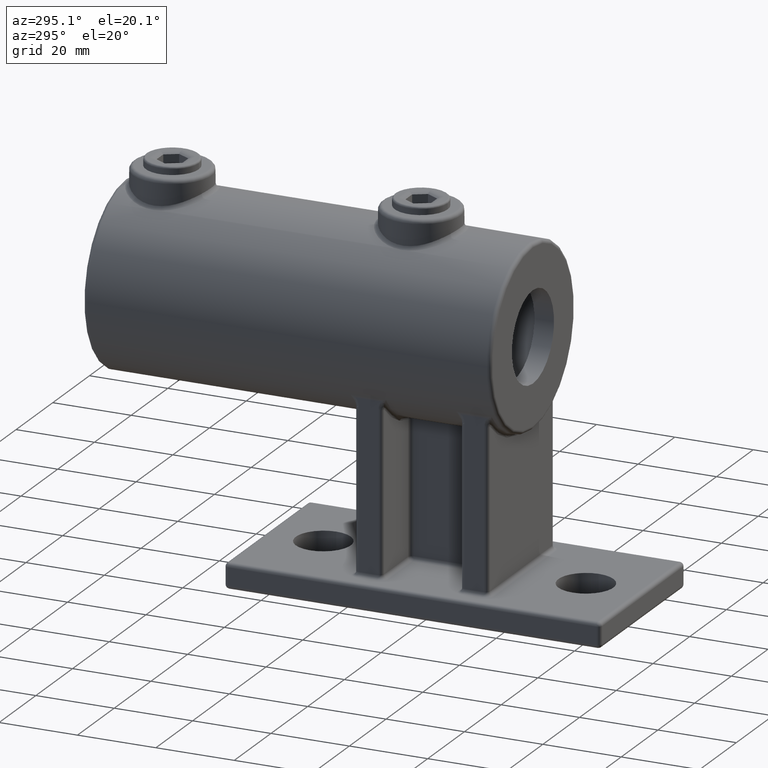
[diagram: clean part render]
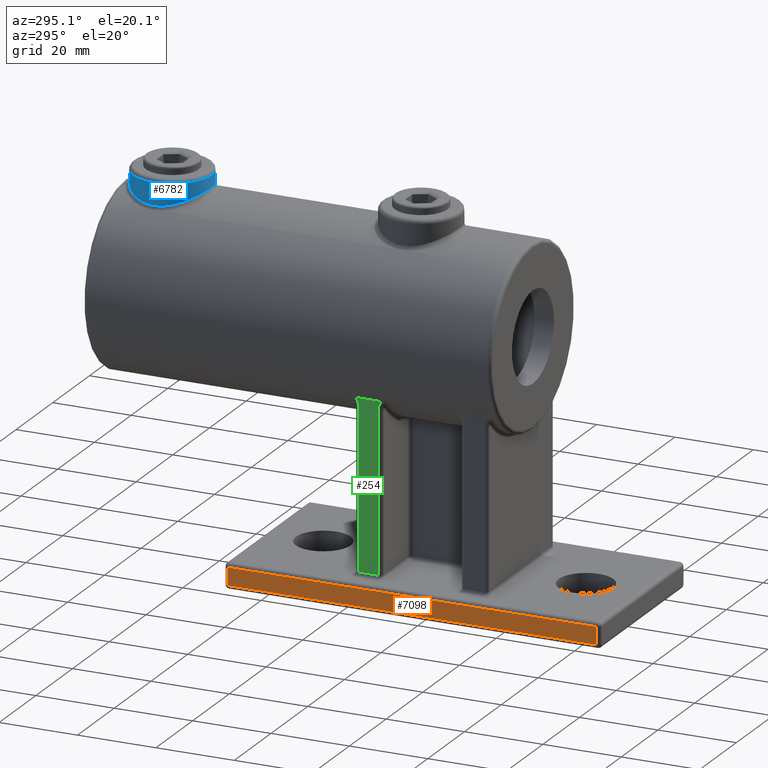
[diagram: same view with three faces highlighted in distinct colors, each labeled with its STEP entity id]
A machine part, auxiliary view with three faces highlighted in distinct colors.
Their STEP definitions:

[orange] entity #7098 — the highlighted planar face has unit normal (1, 0, 0).
#986 = LINE ( 'NONE', #12799, #8273 ) ;
#1278 = ORIENTED_EDGE ( 'NONE', *, *, #13055, .T. ) ;
#1443 = DIRECTION ( 'NONE',  ( -1.445602896647339410E-16, 1.000000000000000000, 0.000000000000000000 ) ) ;
#1877 = CARTESIAN_POINT ( 'NONE',  ( -23.00000000000000355, 46.99999999999999289, 1.000000000000000000 ) ) ;
#2106 = ORIENTED_EDGE ( 'NONE', *, *, #15134, .T. ) ;
#2736 = DIRECTION ( 'NONE',  ( 1.000000000000000000, 1.445602896647339410E-16, -0.000000000000000000 ) ) ;
#2969 = VERTEX_POINT ( 'NONE', #11957 ) ;
#3871 = LINE ( 'NONE', #5772, #5864 ) ;
#4028 = AXIS2_PLACEMENT_3D ( 'NONE', #8915, #2736, #1443 ) ;
#4227 = DIRECTION ( 'NONE',  ( 0.000000000000000000, 0.000000000000000000, -1.000000000000000000 ) ) ;
#4427 = DIRECTION ( 'NONE',  ( 0.000000000000000000, -0.000000000000000000, 1.000000000000000000 ) ) ;
#4622 = VECTOR ( 'NONE', #9259, 1000.000000000000000 ) ;
#5536 = CARTESIAN_POINT ( 'NONE',  ( -22.99999999999998934, -47.00000000000000711, 1.000000000000000000 ) ) ;
#5772 = CARTESIAN_POINT ( 'NONE',  ( -22.99999999999998934, -47.00000000000000711, 6.500000000000000000 ) ) ;
#5864 = VECTOR ( 'NONE', #4427, 1000.000000000000000 ) ;
#6314 = VERTEX_POINT ( 'NONE', #1877 ) ;
#6880 = CARTESIAN_POINT ( 'NONE',  ( -23.00000000000000355, 47.99999999999999289, 1.000000000000000000 ) ) ;
#7000 = FACE_OUTER_BOUND ( 'NONE', #8853, .T. ) ;
#7098 = ADVANCED_FACE ( 'NONE', ( #7000 ), #8805, .F. ) ;
#7347 = EDGE_CURVE ( 'NONE', #11467, #2969, #7976, .T. ) ;
#7750 = CARTESIAN_POINT ( 'NONE',  ( -22.99999999999998934, -47.00000000000000711, 5.500000000000000000 ) ) ;
#7976 = LINE ( 'NONE', #13995, #15683 ) ;
#8273 = VECTOR ( 'NONE', #4227, 1000.000000000000000 ) ;
#8805 = PLANE ( 'NONE',  #4028 ) ;
#8853 = EDGE_LOOP ( 'NONE', ( #10611, #1278, #13629, #2106 ) ) ;
#8915 = CARTESIAN_POINT ( 'NONE',  ( -23.00000000000000355, 47.99999999999999289, 6.500000000000000000 ) ) ;
#9085 = LINE ( 'NONE', #6880, #4622 ) ;
#9259 = DIRECTION ( 'NONE',  ( 1.445602896647339410E-16, -1.000000000000000000, 0.000000000000000000 ) ) ;
#10611 = ORIENTED_EDGE ( 'NONE', *, *, #13868, .T. ) ;
#11467 = VERTEX_POINT ( 'NONE', #7750 ) ;
#11957 = CARTESIAN_POINT ( 'NONE',  ( -23.00000000000000355, 46.99999999999999289, 5.500000000000000000 ) ) ;
#12636 = VERTEX_POINT ( 'NONE', #5536 ) ;
#12799 = CARTESIAN_POINT ( 'NONE',  ( -23.00000000000000355, 46.99999999999999289, 6.500000000000000000 ) ) ;
#12816 = DIRECTION ( 'NONE',  ( -1.445602896647339410E-16, 1.000000000000000000, -0.000000000000000000 ) ) ;
#13055 = EDGE_CURVE ( 'NONE', #12636, #11467, #3871, .T. ) ;
#13629 = ORIENTED_EDGE ( 'NONE', *, *, #7347, .T. ) ;
#13868 = EDGE_CURVE ( 'NONE', #6314, #12636, #9085, .T. ) ;
#13995 = CARTESIAN_POINT ( 'NONE',  ( -23.00000000000000355, 47.99999999999999289, 5.500000000000000000 ) ) ;
#15134 = EDGE_CURVE ( 'NONE', #2969, #6314, #986, .T. ) ;
#15683 = VECTOR ( 'NONE', #12816, 1000.000000000000000 ) ;

[blue] entity #6782 — the highlighted cylindrical surface (bore or boss wall) has radius 10 mm, axis along (-0, -0, -1).
#76 = CARTESIAN_POINT ( 'NONE',  ( 0.000000000000000000, 72.00000000000000000, 93.00000000000000000 ) ) ;
#209 = VERTEX_POINT ( 'NONE', #4884 ) ;
#252 = DIRECTION ( 'NONE',  ( -1.000000000000000000, 0.000000000000000000, 0.000000000000000000 ) ) ;
#295 = DIRECTION ( 'NONE',  ( -0.000000000000000000, -0.000000000000000000, -1.000000000000000000 ) ) ;
#541 = CARTESIAN_POINT ( 'NONE',  ( 9.915889433159575717, 73.33640590795802439, 86.37822785739116682 ) ) ;
#596 = CARTESIAN_POINT ( 'NONE',  ( 0.6531738527059035571, 82.00070254683572557, 89.00035420053647783 ) ) ;
#643 = CARTESIAN_POINT ( 'NONE',  ( -4.175800018884931575, 81.09231397784238027, 88.55875620949858273 ) ) ;
#689 = CARTESIAN_POINT ( 'NONE',  ( -8.960109046784248577, 76.45226150743465610, 86.88358683566858076 ) ) ;
#751 = CARTESIAN_POINT ( 'NONE',  ( -6.846601791825821515, 64.70433218251025664, 87.78924086525198334 ) ) ;
#992 = CARTESIAN_POINT ( 'NONE',  ( 0.000000000000000000, 72.00000000000000000, 92.00000000000000000 ) ) ;
#1007 = CARTESIAN_POINT ( 'NONE',  ( 5.042422044882036936, 63.34031320766225548, 88.35820389461791535 ) ) ;
#1769 = CARTESIAN_POINT ( 'NONE',  ( -8.119490202423980563, 66.15372751148267128, 87.27724424875242448 ) ) ;
#1809 = CARTESIAN_POINT ( 'NONE',  ( -3.563494718649443893, 62.65073710781493332, 88.68013385416084304 ) ) ;
#1859 = CARTESIAN_POINT ( 'NONE',  ( 7.518105003423262822, 78.60168847271708614, 87.53145933793906863 ) ) ;
#1890 = EDGE_CURVE ( 'NONE', #10736, #10736, #11275, .T. ) ;
#1923 = CARTESIAN_POINT ( 'NONE',  ( -9.652407192341552644, 69.36555037122201384, 86.52393539707151149 ) ) ;
#1969 = CARTESIAN_POINT ( 'NONE',  ( -5.040268303391500559, 63.33867719700420196, 88.35889053769514589 ) ) ;
#2015 = CARTESIAN_POINT ( 'NONE',  ( 7.526155328160895053, 65.38418056716281512, 87.53309641896554183 ) ) ;
#2075 = CARTESIAN_POINT ( 'NONE',  ( 10.00000000000000355, 71.32631111152537073, 86.33072900770152103 ) ) ;
#2128 = CARTESIAN_POINT ( 'NONE',  ( 9.458650511049581766, 68.73762900592080882, 86.62776556968482566 ) ) ;
#2218 = CARTESIAN_POINT ( 'NONE',  ( 2.623774558904533816, 62.34468334411612744, 88.82841204224044418 ) ) ;
#2994 = CARTESIAN_POINT ( 'NONE',  ( -6.111324961795072674, 64.07814873253610699, 88.04106064849601410 ) ) ;
#3047 = CARTESIAN_POINT ( 'NONE',  ( 8.966372491237137865, 76.47646993959726558, 86.88188423352443124 ) ) ;
#3093 = CARTESIAN_POINT ( 'NONE',  ( -3.251613716843307245, 62.53759882226272993, 88.73458637759524947 ) ) ;
#3135 = CARTESIAN_POINT ( 'NONE',  ( 9.866216874135725234, 73.66312156086527807, 86.40612907104065243 ) ) ;
#3181 = CARTESIAN_POINT ( 'NONE',  ( 9.461543920274175790, 75.25377131918115481, 86.62622880383804613 ) ) ;
#3184 = B_SPLINE_CURVE_WITH_KNOTS ( 'NONE', 3,
 ( #7729, #10203, #5298, #541, #3135, #9125, #14117, #3181, #5567, #3047, #5506, #15425, #14240, #1859, #12792, #9275, #12988, #15470, #5407, #8038, #11651, #14023, #11810, #15266, #5458, #10396, #596, #15373, #6740, #14072, #7978, #643, #11605, #10345, #11711, #4267, #14171, #9227, #4313, #6686, #8095, #689, #9171, #6633, #7880, #6788, #12940, #12839, #12896, #5613, #1923, #10492, #6837, #11767, #4368, #1769, #10555, #10441, #15314, #751, #4221, #2994, #9321, #1969, #7928, #1809, #3093, #3292, #15725, #6948, #15675, #7044, #8290, #9577, #2218, #13106, #6904, #8137, #1007, #13050, #5710, #2015, #4629, #3337, #13150, #9469, #14381, #5812, #2128, #10649, #15582, #4579, #2075, #14439 ),
 .UNSPECIFIED., .T., .F.,
 ( 4, 2, 2, 2, 2, 2, 2, 2, 2, 2, 2, 2, 2, 2, 2, 2, 2, 2, 2, 2, 2, 2, 2, 2, 2, 2, 2, 2, 2, 2, 2, 2, 2, 2, 2, 2, 2, 2, 2, 2, 2, 2, 2, 2, 2, 2, 4 ),
 ( 0.000000000000000000, 0.001010199429014424716, 0.002020398858028849432, 0.003030598287043274365, 0.004040797716057698864, 0.006061196574086548730, 0.007071396003100990577, 0.008081595432115432423, 0.01010199429014432652, 0.01111219371915876490, 0.01212239314817320501, 0.01313259257718764339, 0.01414279200620208177, 0.01616319086423096199, 0.01818358972225983874, 0.02020398858028871897, 0.02121418800930315041, 0.02222438743831758184, 0.02424478629634643778, 0.02626518515437529025, 0.02727538458338969393, 0.02828558401240409415, 0.03030598287043290498, 0.03232638172846170888, 0.03434678058649051624, 0.03535698001550491992, 0.03636717944451931667, 0.03838757830254815873, 0.03939777773156254853, 0.04040797716057695221, 0.04141817658959134202, 0.04242837601860573876, 0.04444877487663452531, 0.04545897430564892205, 0.04646917373466331880, 0.04848957259269211229, 0.05050997145072091965, 0.05152017087973531639, 0.05253037030874970620, 0.05455076916677850662, 0.05657116802480730011, 0.05859156688283610748, 0.05960176631185052504, 0.06061196574086494954, 0.06162216516987936016, 0.06263236459889377772, 0.06465276345692257121 ),
 .UNSPECIFIED. ) ;
#3292 = CARTESIAN_POINT ( 'NONE',  ( -2.617412126440028963, 62.34292064999091565, 88.82927583036217811 ) ) ;
#3337 = CARTESIAN_POINT ( 'NONE',  ( 8.477290908100172828, 66.68580080756549933, 87.11538780767570245 ) ) ;
#3373 = ORIENTED_EDGE ( 'NONE', *, *, #12243, .T. ) ;
#4221 = CARTESIAN_POINT ( 'NONE',  ( -6.609087051378408795, 64.48840971299811997, 87.87420100860759931 ) ) ;
#4267 = CARTESIAN_POINT ( 'NONE',  ( -6.126220422941077715, 79.92997323600219772, 88.04251359623820861 ) ) ;
#4313 = CARTESIAN_POINT ( 'NONE',  ( -7.946219526359638685, 78.10509351088239782, 87.35575349367782394 ) ) ;
#4368 = CARTESIAN_POINT ( 'NONE',  ( -8.661724004210951122, 66.96069152522976253, 87.03188738464284313 ) ) ;
#4579 = CARTESIAN_POINT ( 'NONE',  ( 9.932863516132046655, 70.66685607661173663, 86.36926322285873425 ) ) ;
#4629 = CARTESIAN_POINT ( 'NONE',  ( 7.934086898310542146, 65.87864705479466920, 87.36104479255905630 ) ) ;
#4884 = CARTESIAN_POINT ( 'NONE',  ( 10.00000000000000000, 72.00000000000000000, 86.33072900770154945 ) ) ;
#4887 = CYLINDRICAL_SURFACE ( 'NONE', #12269, 10.00000000000000000 ) ;
#5295 = FACE_OUTER_BOUND ( 'NONE', #10088, .T. ) ;
#5298 = CARTESIAN_POINT ( 'NONE',  ( 9.982819480647055599, 72.67391336111147382, 86.34050426461762129 ) ) ;
#5383 = EDGE_LOOP ( 'NONE', ( #9208 ) ) ;
#5407 = CARTESIAN_POINT ( 'NONE',  ( 5.031312484076664759, 80.64830301170729854, 88.35541694137825175 ) ) ;
#5458 = CARTESIAN_POINT ( 'NONE',  ( 2.294673620312759788, 81.73888968282071232, 88.86963485336080737 ) ) ;
#5506 = CARTESIAN_POINT ( 'NONE',  ( 8.658117191938332624, 77.04482505408785187, 87.03353590484374536 ) ) ;
#5567 = CARTESIAN_POINT ( 'NONE',  ( 9.348926633970519262, 75.56457928591431994, 86.68564076401811747 ) ) ;
#5613 = CARTESIAN_POINT ( 'NONE',  ( -9.734951819299819675, 69.68918893655893498, 86.47872656123631430 ) ) ;
#5710 = CARTESIAN_POINT ( 'NONE',  ( 6.618482528148782684, 64.47618648449473255, 87.87521070754779373 ) ) ;
#5812 = CARTESIAN_POINT ( 'NONE',  ( 9.346689013217069686, 68.42992551840410442, 86.68679495653805134 ) ) ;
#5861 = FACE_OUTER_BOUND ( 'NONE', #5383, .T. ) ;
#6633 = CARTESIAN_POINT ( 'NONE',  ( -9.479751640096738541, 75.24985852440610756, 86.61841780078965769 ) ) ;
#6686 = CARTESIAN_POINT ( 'NONE',  ( -8.484210113171256396, 77.30300119177734075, 87.11215734165224944 ) ) ;
#6740 = CARTESIAN_POINT ( 'NONE',  ( -1.350045245615930423, 81.93042037482770468, 88.96466726174328699 ) ) ;
#6782 = ADVANCED_FACE ( 'NONE', ( #5295, #5861 ), #4887, .T. ) ;
#6788 = CARTESIAN_POINT ( 'NONE',  ( -9.933634296447237944, 73.32704268792755897, 86.36882433646539425 ) ) ;
#6837 = CARTESIAN_POINT ( 'NONE',  ( -9.345337429851495514, 68.42646534235247202, 86.68749766520505773 ) ) ;
#6904 = CARTESIAN_POINT ( 'NONE',  ( 3.568751688895059004, 62.65274546050246585, 88.67917375680107739 ) ) ;
#6948 = CARTESIAN_POINT ( 'NONE',  ( -1.326419663529754267, 62.06640408498621753, 88.96626800999696627 ) ) ;
#7044 = CARTESIAN_POINT ( 'NONE',  ( 0.6788452556219216616, 62.00047338862916035, 88.99976133327899674 ) ) ;
#7729 = CARTESIAN_POINT ( 'NONE',  ( 10.00000000000000178, 72.00000000000001421, 86.33072900770156366 ) ) ;
#7880 = CARTESIAN_POINT ( 'NONE',  ( -9.672057238769127707, 74.62477454291008883, 86.51353100819113706 ) ) ;
#7928 = CARTESIAN_POINT ( 'NONE',  ( -4.469434357910503586, 63.03044028569674850, 88.50074255646282495 ) ) ;
#7978 = CARTESIAN_POINT ( 'NONE',  ( -3.269062103994790913, 81.47328612667084258, 88.73869306632518317 ) ) ;
#8038 = CARTESIAN_POINT ( 'NONE',  ( 4.454690596862006302, 80.95896098780214345, 88.49668068630103335 ) ) ;
#8095 = CARTESIAN_POINT ( 'NONE',  ( -8.651242728428703899, 77.02615020812739033, 87.03345711387522954 ) ) ;
#8137 = CARTESIAN_POINT ( 'NONE',  ( 4.474247650111009555, 63.03285261980887100, 88.49962563028550733 ) ) ;
#8290 = CARTESIAN_POINT ( 'NONE',  ( 1.336834321259990244, 62.06792900729849549, 88.96550235562415310 ) ) ;
#8373 = DIRECTION ( 'NONE',  ( 1.000000000000000000, 0.000000000000000000, 0.000000000000000000 ) ) ;
#9125 = CARTESIAN_POINT ( 'NONE',  ( 9.735588921690837338, 74.30792484313205648, 86.47837563108537040 ) ) ;
#9171 = CARTESIAN_POINT ( 'NONE',  ( -9.101963942064683621, 76.15464442449616911, 86.81238212640802487 ) ) ;
#9208 = ORIENTED_EDGE ( 'NONE', *, *, #1890, .T. ) ;
#9227 = CARTESIAN_POINT ( 'NONE',  ( -7.537739845392243510, 78.60325368533568735, 87.52852472157989894 ) ) ;
#9275 = CARTESIAN_POINT ( 'NONE',  ( 6.614546178750660310, 79.52757159496533745, 87.87665655432677170 ) ) ;
#9321 = CARTESIAN_POINT ( 'NONE',  ( -5.849675289815495560, 63.88291903941516381, 88.12335649759756961 ) ) ;
#9469 = CARTESIAN_POINT ( 'NONE',  ( 8.954548816241493014, 67.53666416830466801, 86.88633703189404400 ) ) ;
#9577 = CARTESIAN_POINT ( 'NONE',  ( 2.304474440217061382, 62.26358959338573840, 88.86841223135547807 ) ) ;
#9835 = CARTESIAN_POINT ( 'NONE',  ( 10.00000000000000000, 72.00000000000000000, 92.00000000000000000 ) ) ;
#10088 = EDGE_LOOP ( 'NONE', ( #3373 ) ) ;
#10203 = CARTESIAN_POINT ( 'NONE',  ( 10.00000000000000000, 72.33684444423734305, 86.33072900770156366 ) ) ;
#10345 = CARTESIAN_POINT ( 'NONE',  ( -5.048335491776480666, 80.63833536291184600, 88.35095236336627522 ) ) ;
#10396 = CARTESIAN_POINT ( 'NONE',  ( 1.312504471990776356, 81.93596140907614256, 88.96744864726784385 ) ) ;
#10441 = CARTESIAN_POINT ( 'NONE',  ( -7.515348800904787296, 65.39520971607070976, 87.53256744133004474 ) ) ;
#10492 = CARTESIAN_POINT ( 'NONE',  ( -9.457337950681832694, 68.73380215848324326, 86.62846135082831722 ) ) ;
#10555 = CARTESIAN_POINT ( 'NONE',  ( -7.924760999534341543, 65.89247305415628375, 87.36219440583829510 ) ) ;
#10649 = CARTESIAN_POINT ( 'NONE',  ( 9.653340518568729323, 69.36900193353413613, 86.52342765425049720 ) ) ;
#10736 = VERTEX_POINT ( 'NONE', #9835 ) ;
#11275 = CIRCLE ( 'NONE', #15277, 10.00000000000000000 ) ;
#11605 = CARTESIAN_POINT ( 'NONE',  ( -4.474301437885804589, 80.94914273674278604, 88.49215232607606652 ) ) ;
#11651 = CARTESIAN_POINT ( 'NONE',  ( 4.159804772935751238, 81.09960737809576869, 88.56216804317513436 ) ) ;
#11711 = CARTESIAN_POINT ( 'NONE',  ( -5.325077693839500803, 80.47037842148247933, 88.27619062888201995 ) ) ;
#11767 = CARTESIAN_POINT ( 'NONE',  ( -8.967979550468069050, 67.52816935795287634, 86.88102808371347408 ) ) ;
#11810 = CARTESIAN_POINT ( 'NONE',  ( 3.248525730154226743, 81.46338906494345622, 88.73506552932471436 ) ) ;
#11959 = DIRECTION ( 'NONE',  ( -0.000000000000000000, -0.000000000000000000, -1.000000000000000000 ) ) ;
#12243 = EDGE_CURVE ( 'NONE', #209, #209, #3184, .T. ) ;
#12269 = AXIS2_PLACEMENT_3D ( 'NONE', #76, #295, #252 ) ;
#12792 = CARTESIAN_POINT ( 'NONE',  ( 7.299121231648947550, 78.84302331303423728, 87.61868749643900856 ) ) ;
#12839 = CARTESIAN_POINT ( 'NONE',  ( -9.998791517097778581, 71.31675158617014176, 86.33141452639991087 ) ) ;
#12896 = CARTESIAN_POINT ( 'NONE',  ( -9.931880950250127071, 70.66049278833590108, 86.36981501646644688 ) ) ;
#12940 = CARTESIAN_POINT ( 'NONE',  ( -10.00117636182507219, 72.64740372030057358, 86.33006170988250005 ) ) ;
#12988 = CARTESIAN_POINT ( 'NONE',  ( 6.118578937141933238, 79.93617214696951123, 88.04507505373410936 ) ) ;
#13050 = CARTESIAN_POINT ( 'NONE',  ( 6.113320730984818319, 64.06000597857827472, 88.04669646917578518 ) ) ;
#13106 = CARTESIAN_POINT ( 'NONE',  ( 3.255861744193740304, 62.53909639812140142, 88.73386451283390386 ) ) ;
#13150 = CARTESIAN_POINT ( 'NONE',  ( 8.646327489991724846, 66.96548590380753296, 87.03578809241818703 ) ) ;
#14023 = CARTESIAN_POINT ( 'NONE',  ( 3.556721913740376717, 81.35182118160703624, 88.68135861637388473 ) ) ;
#14072 = CARTESIAN_POINT ( 'NONE',  ( -2.643860125002837513, 81.66674064126186749, 88.83385730824269899 ) ) ;
#14117 = CARTESIAN_POINT ( 'NONE',  ( 9.654631159448408440, 74.62601186741621007, 86.52272180783836575 ) ) ;
#14171 = CARTESIAN_POINT ( 'NONE',  ( -6.621831842837431203, 79.52142435014123123, 87.87415031880865968 ) ) ;
#14240 = CARTESIAN_POINT ( 'NONE',  ( 7.928203058861623909, 78.10309673778496631, 87.36072256900813215 ) ) ;
#14381 = CARTESIAN_POINT ( 'NONE',  ( 9.094639810725340112, 67.82944200051066730, 86.81607901014088213 ) ) ;
#14439 = CARTESIAN_POINT ( 'NONE',  ( 10.00000000000000178, 72.00000000000001421, 86.33072900770156366 ) ) ;
#15266 = CARTESIAN_POINT ( 'NONE',  ( 2.618279203446261416, 81.65677306488900911, 88.82912820760319050 ) ) ;
#15277 = AXIS2_PLACEMENT_3D ( 'NONE', #992, #11959, #8373 ) ;
#15314 = CARTESIAN_POINT ( 'NONE',  ( -7.299733086749874644, 65.15773269586775029, 87.61842658749063162 ) ) ;
#15373 = CARTESIAN_POINT ( 'NONE',  ( -0.6745113668319213662, 81.99928607092329003, 88.99964006091835245 ) ) ;
#15425 = CARTESIAN_POINT ( 'NONE',  ( 8.120212080541881150, 77.84512352743244890, 87.27690934738663486 ) ) ;
#15470 = CARTESIAN_POINT ( 'NONE',  ( 5.312098808248641113, 80.47859454098944809, 88.27980475875592958 ) ) ;
#15582 = CARTESIAN_POINT ( 'NONE',  ( 9.735810347085010363, 69.69267265581235904, 86.47825590304367438 ) ) ;
#15675 = CARTESIAN_POINT ( 'NONE',  ( -0.6648260000319146101, 61.99953152485964836, 89.00023618950399396 ) ) ;
#15725 = CARTESIAN_POINT ( 'NONE',  ( -2.297079158844113067, 62.26180937906591595, 88.86929121006076571 ) ) ;

[green] entity #254 — the highlighted planar face has unit normal (1, 0, 0).
#85 = CARTESIAN_POINT ( 'NONE',  ( -18.00000000000000000, 15.99999999999999645, 7.499999999993178790 ) ) ;
#254 = ADVANCED_FACE ( 'NONE', ( #14781 ), #6656, .F. ) ;
#434 = CARTESIAN_POINT ( 'NONE',  ( -18.00000000000000711, 10.75911090148147053, 49.45197837925854856 ) ) ;
#553 = CARTESIAN_POINT ( 'NONE',  ( -18.00000000000000000, 15.99999999999999645, 500000.0000000000582 ) ) ;
#1561 = CARTESIAN_POINT ( 'NONE',  ( -18.00000000000000000, 10.99999999999999645, 48.05892565390257687 ) ) ;
#1637 = CARTESIAN_POINT ( 'NONE',  ( -18.00000000000000000, 16.99999999999999645, 500000.0000000000582 ) ) ;
#1655 = CARTESIAN_POINT ( 'NONE',  ( -17.99999999999999645, 10.94013548671566483, 48.86823287867184007 ) ) ;
#1779 = DIRECTION ( 'NONE',  ( 0.000000000000000000, 0.000000000000000000, -1.000000000000000000 ) ) ;
#1791 = CARTESIAN_POINT ( 'NONE',  ( -18.00000000000000000, 10.99999999999999645, 7.499999999993178790 ) ) ;
#2239 = ORIENTED_EDGE ( 'NONE', *, *, #10964, .T. ) ;
#2443 = EDGE_LOOP ( 'NONE', ( #14952, #2239, #13197, #14994, #11918, #6513 ) ) ;
#2560 = VERTEX_POINT ( 'NONE', #85 ) ;
#2660 = DIRECTION ( 'NONE',  ( -0.000000000000000000, 1.000000000000000000, -0.000000000000000000 ) ) ;
#2756 = VECTOR ( 'NONE', #14895, 1000.000000000000000 ) ;
#2792 = CARTESIAN_POINT ( 'NONE',  ( -18.00000000000000000, 15.99999999999999645, 48.05892565390258397 ) ) ;
#4098 = DIRECTION ( 'NONE',  ( 0.000000000000000000, -1.000000000000000000, 0.000000000000000000 ) ) ;
#4363 = VERTEX_POINT ( 'NONE', #11592 ) ;
#5247 = CARTESIAN_POINT ( 'NONE',  ( -18.00000000000000000, 10.26385418103617830, 50.33712170137505382 ) ) ;
#5260 = B_SPLINE_CURVE_WITH_KNOTS ( 'NONE', 3,
 ( #11773, #6845, #11566, #6794, #11657, #15476, #15321, #15431 ),
 .UNSPECIFIED., .F., .F.,
 ( 4, 2, 2, 4 ),
 ( 7.703422383034160809E-16, 0.0006082084231054363764, 0.001216416846210102536, 0.002432833692419431385 ),
 .UNSPECIFIED. ) ;
#6513 = ORIENTED_EDGE ( 'NONE', *, *, #13479, .T. ) ;
#6528 = CARTESIAN_POINT ( 'NONE',  ( -18.00000000000000000, 10.68298884761354017, 49.64299756432693300 ) ) ;
#6575 = CARTESIAN_POINT ( 'NONE',  ( -18.00000000000000355, 10.49978335049094547, 50.00438911360072325 ) ) ;
#6656 = PLANE ( 'NONE',  #7498 ) ;
#6794 = CARTESIAN_POINT ( 'NONE',  ( -18.00000000000000000, 16.31671899260701508, 49.64236479841685679 ) ) ;
#6845 = CARTESIAN_POINT ( 'NONE',  ( -18.00000000000000000, 16.60752743627141115, 50.17655748897313828 ) ) ;
#6951 = EDGE_CURVE ( 'NONE', #12828, #2560, #10845, .T. ) ;
#7428 = CARTESIAN_POINT ( 'NONE',  ( -18.00000000000000000, 16.73614581896617182, 50.33712170137505382 ) ) ;
#7498 = AXIS2_PLACEMENT_3D ( 'NONE', #1637, #12727, #8937 ) ;
#7761 = CARTESIAN_POINT ( 'NONE',  ( -18.00000000000000355, 10.99999999999999289, 48.46868830133674066 ) ) ;
#8489 = VECTOR ( 'NONE', #4098, 1000.000000000000000 ) ;
#8789 = CARTESIAN_POINT ( 'NONE',  ( -18.00000000000000000, 16.99999999999999645, 50.33712170137505382 ) ) ;
#8908 = VECTOR ( 'NONE', #2660, 1000.000000000000000 ) ;
#8937 = DIRECTION ( 'NONE',  ( -0.000000000000000000, 0.000000000000000000, -1.000000000000000000 ) ) ;
#9005 = VERTEX_POINT ( 'NONE', #12517 ) ;
#9181 = VERTEX_POINT ( 'NONE', #1791 ) ;
#9697 = CARTESIAN_POINT ( 'NONE',  ( -18.00000000000000000, 10.99999999999999645, 500000.0000000000582 ) ) ;
#10114 = CARTESIAN_POINT ( 'NONE',  ( -18.00000000000000000, 16.99999999999999645, 7.499999999993178790 ) ) ;
#10641 = EDGE_CURVE ( 'NONE', #9005, #11192, #12175, .T. ) ;
#10845 = LINE ( 'NONE', #553, #14339 ) ;
#10964 = EDGE_CURVE ( 'NONE', #11192, #12828, #5260, .T. ) ;
#11192 = VERTEX_POINT ( 'NONE', #7428 ) ;
#11484 = CARTESIAN_POINT ( 'NONE',  ( -18.00000000000000000, 10.39247870545165497, 50.17654982178780898 ) ) ;
#11566 = CARTESIAN_POINT ( 'NONE',  ( -17.99999999999999645, 16.50012886709851045, 50.00427228793913059 ) ) ;
#11592 = CARTESIAN_POINT ( 'NONE',  ( -18.00000000000000000, 10.99999999999999645, 48.05892565390257687 ) ) ;
#11657 = CARTESIAN_POINT ( 'NONE',  ( -18.00000000000000355, 16.24048684668328590, 49.45083654824179575 ) ) ;
#11773 = CARTESIAN_POINT ( 'NONE',  ( -18.00000000000000000, 16.73614581896617182, 50.33712170137505382 ) ) ;
#11918 = ORIENTED_EDGE ( 'NONE', *, *, #12843, .T. ) ;
#11974 = B_SPLINE_CURVE_WITH_KNOTS ( 'NONE', 3,
 ( #1561, #7761, #1655, #434, #6528, #6575, #11484, #5247 ),
 .UNSPECIFIED., .F., .F.,
 ( 4, 2, 2, 4 ),
 ( 0.000000000000000000, 0.001211762969223936694, 0.001817644453835905042, 0.002423525938447873389 ),
 .UNSPECIFIED. ) ;
#12175 = LINE ( 'NONE', #8789, #8908 ) ;
#12517 = CARTESIAN_POINT ( 'NONE',  ( -18.00000000000000000, 10.26385418103617830, 50.33712170137505382 ) ) ;
#12727 = DIRECTION ( 'NONE',  ( 1.000000000000000000, 0.000000000000000000, -0.000000000000000000 ) ) ;
#12828 = VERTEX_POINT ( 'NONE', #2792 ) ;
#12843 = EDGE_CURVE ( 'NONE', #9181, #4363, #12946, .T. ) ;
#12946 = LINE ( 'NONE', #9697, #2756 ) ;
#13197 = ORIENTED_EDGE ( 'NONE', *, *, #6951, .T. ) ;
#13479 = EDGE_CURVE ( 'NONE', #4363, #9005, #11974, .T. ) ;
#13716 = EDGE_CURVE ( 'NONE', #2560, #9181, #14665, .T. ) ;
#14339 = VECTOR ( 'NONE', #1779, 1000.000000000000000 ) ;
#14665 = LINE ( 'NONE', #10114, #8489 ) ;
#14781 = FACE_OUTER_BOUND ( 'NONE', #2443, .T. ) ;
#14895 = DIRECTION ( 'NONE',  ( -0.000000000000000000, -0.000000000000000000, 1.000000000000000000 ) ) ;
#14952 = ORIENTED_EDGE ( 'NONE', *, *, #10641, .T. ) ;
#14994 = ORIENTED_EDGE ( 'NONE', *, *, #13716, .T. ) ;
#15321 = CARTESIAN_POINT ( 'NONE',  ( -18.00000000000000355, 16.00000000000000000, 48.46875099457509606 ) ) ;
#15431 = CARTESIAN_POINT ( 'NONE',  ( -18.00000000000000000, 15.99999999999999645, 48.05892565390258397 ) ) ;
#15476 = CARTESIAN_POINT ( 'NONE',  ( -18.00000000000000355, 16.05988834133415111, 48.86799810653487697 ) ) ;